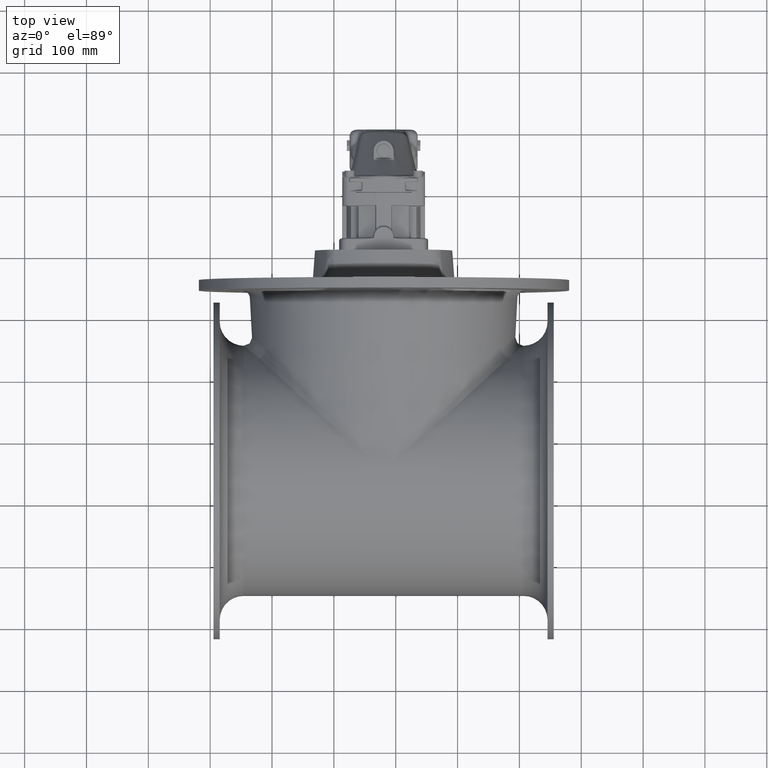
[diagram: clean part render]
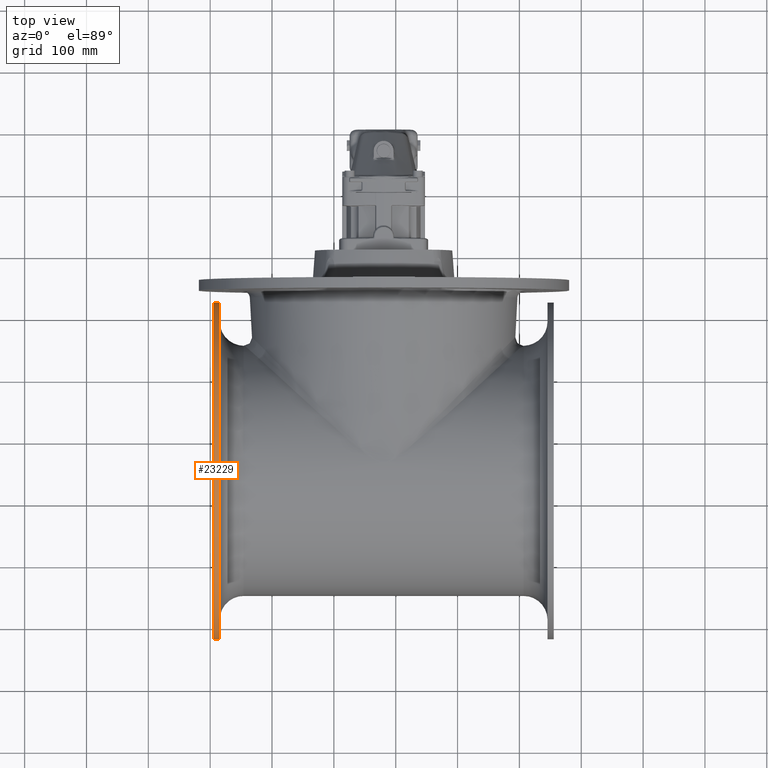
[diagram: same view with one face highlighted and labeled with its STEP entity id]
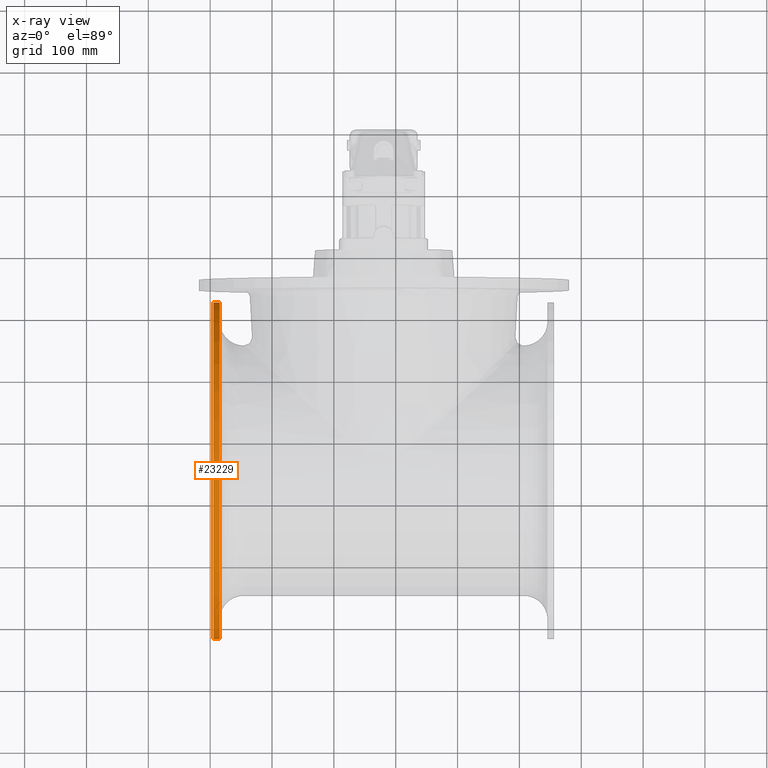
[diagram: x-ray of the same camera — body ghosted, the highlighted face saturated]
A machine part, top view. The second image highlights one B-rep face of the part: STEP entity #23229.
The next image is the same camera in x-ray: the body ghosted, the highlighted face saturated — about 0% of this face is hidden behind the body in this view.
In plain terms, the highlighted cylindrical surface (bore or boss wall) has radius 272.5 mm, axis along (1, 0, -0).
Its self-contained STEP definition (entity closure, byte-faithful):
#1318=CIRCLE('',#24677,272.5);
#1319=CIRCLE('',#24679,272.5);
#4628=FACE_BOUND('',#6267,.T.);
#4805=FACE_OUTER_BOUND('',#6266,.T.);
#6266=EDGE_LOOP('',(#14823));
#6267=EDGE_LOOP('',(#14824));
#9143=VERTEX_POINT('',#33066);
#9144=VERTEX_POINT('',#33069);
#11332=EDGE_CURVE('',#9143,#9143,#1318,.T.);
#11333=EDGE_CURVE('',#9144,#9144,#1319,.T.);
#14823=ORIENTED_EDGE('',*,*,#11333,.T.);
#14824=ORIENTED_EDGE('',*,*,#11332,.F.);
#21545=CYLINDRICAL_SURFACE('',#24678,272.5);
#23229=ADVANCED_FACE('',(#4805,#4628),#21545,.T.);
#24677=AXIS2_PLACEMENT_3D('',#33067,#26397,#26398);
#24678=AXIS2_PLACEMENT_3D('',#33068,#26399,#26400);
#24679=AXIS2_PLACEMENT_3D('',#33070,#26401,#26402);
#26397=DIRECTION('center_axis',(1.,2.75075785414574E-15,-9.97823151778132E-16));
#26398=DIRECTION('ref_axis',(-9.97823151778074E-16,-2.09740053427586E-14,
-1.));
#26399=DIRECTION('center_axis',(1.,2.75075785414574E-15,-9.97823151778132E-16));
#26400=DIRECTION('ref_axis',(9.97823151778075E-16,2.06052496827375E-14,
1.));
#26401=DIRECTION('center_axis',(1.,2.75075785414574E-15,-9.97823151778132E-16));
#26402=DIRECTION('ref_axis',(-9.97823151778074E-16,-2.09740053427586E-14,
-1.));
#33066=CARTESIAN_POINT('',(-884.546366145328,751.291495690644,13.5884039401254));
#33067=CARTESIAN_POINT('Origin',(-884.546366145327,751.29149569065,286.088403940125));
#33068=CARTESIAN_POINT('Origin',(-889.546366145327,751.29149569065,286.088403940125));
#33069=CARTESIAN_POINT('',(-894.546366145328,751.291495690644,13.5884039401254));
#33070=CARTESIAN_POINT('Origin',(-894.546366145327,751.29149569065,286.088403940125));